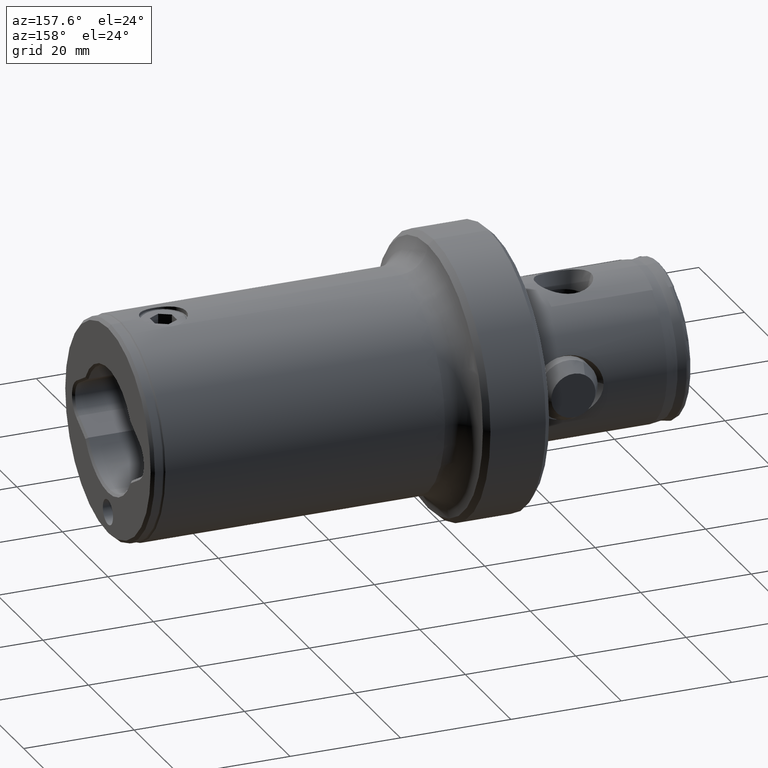
[diagram: clean part render]
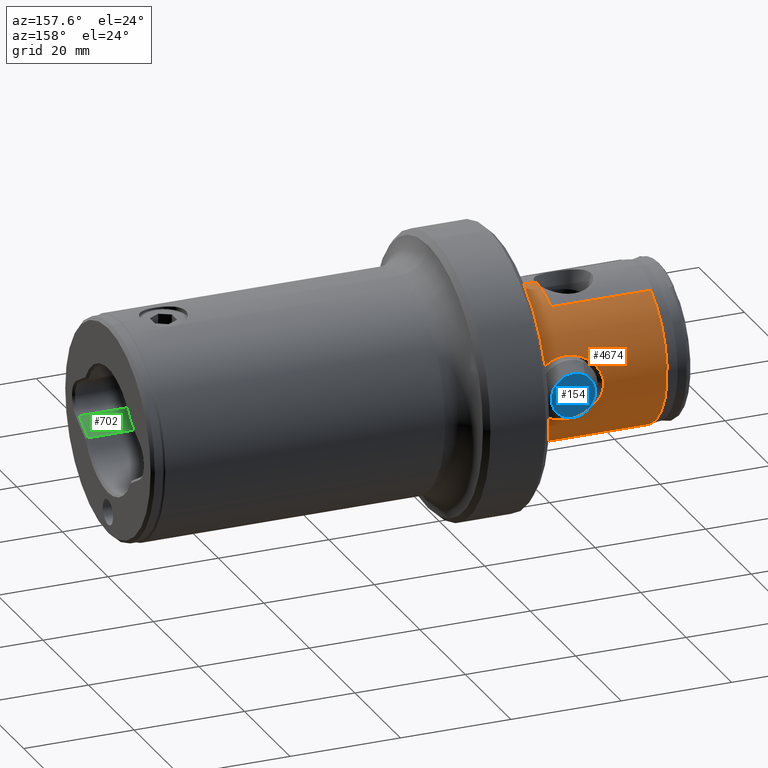
[diagram: same view with three faces highlighted in distinct colors, each labeled with its STEP entity id]
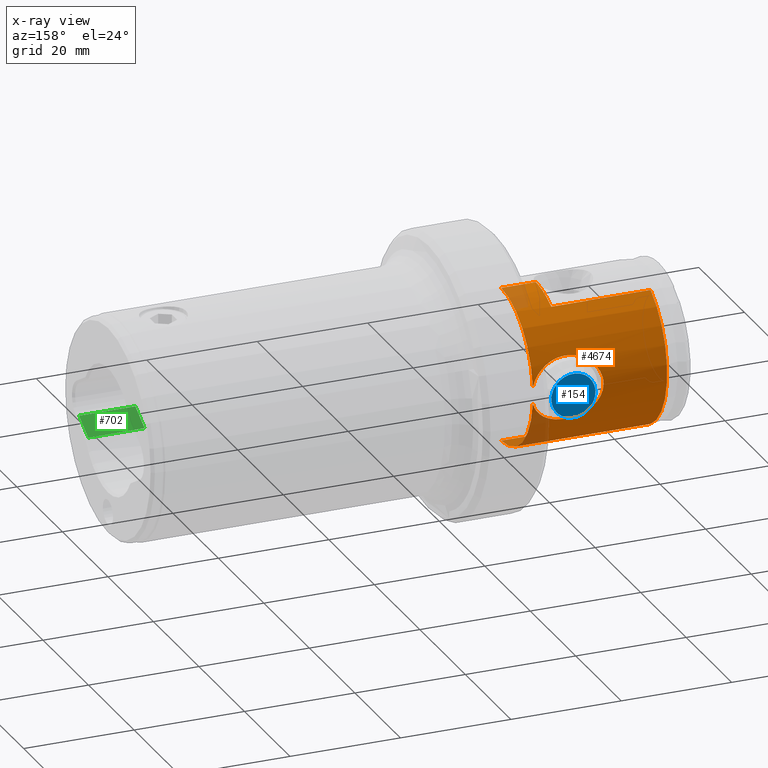
[diagram: x-ray of the same camera — body ghosted, the three highlighted faces saturated]
A machine part, auxiliary view with three faces highlighted in distinct colors.
The next image is the same camera in x-ray (body ghosted, the three faces saturated) — at least one of them is partly hidden behind the body in this view.
Their STEP definitions:

[orange] entity #4674 — the highlighted cylindrical surface (partial cylindrical patch) has radius 14 mm, axis along (-1, -0, -0).
#22 = CARTESIAN_POINT ( 'NONE',  ( 22.50000000000002100, 0.6195287105485863800, 13.98628557469087300 ) ) ;
#104 = B_SPLINE_CURVE_WITH_KNOTS ( 'NONE', 3,
 ( #3805, #3391, #2147, #5046, #2576, #127, #3003, #543, #3411, #949, #3821, #1348, #4231, #1749, #4639, #2168, #5069, #2597, #146, #3032, #566, #3429, #970, #3841, #1368, #4251, #1774, #4664, #2186, #5091, #2620, #167, #3050, #589, #3451, #986 ),
 .UNSPECIFIED., .F., .F.,
 ( 4, 2, 2, 2, 2, 2, 2, 2, 2, 2, 2, 2, 2, 2, 2, 2, 2, 4 ),
 ( 0.01617916280767380000, 0.01673943304204596500, 0.01729970327641813100, 0.01842024374516246200, 0.01954078421390679400, 0.02066132468265112500, 0.02178186515139545600, 0.02290240562013978700, 0.02402294608888411900, 0.02514348655762845000, 0.02626402702637278100, 0.02738456749511711300, 0.02850510796386144400, 0.02962564843260577200, 0.03074618890135010300, 0.03186672937009443800, 0.03298726983883876200, 0.03410781030758310000 ),
 .UNSPECIFIED. ) ;
#127 = CARTESIAN_POINT ( 'NONE',  ( 28.17722343992785700, 13.71020693130640900, 2.852895978286922800 ) ) ;
#146 = CARTESIAN_POINT ( 'NONE',  ( 22.10380463981419300, 12.74839810367421800, 5.786207584170949000 ) ) ;
#167 = CARTESIAN_POINT ( 'NONE',  ( 16.31341139357346700, 13.88318133678589700, 1.836763598897936500 ) ) ;
#196 = EDGE_CURVE ( 'NONE', #4934, #2727, #4138, .T. ) ;
#199 = VERTEX_POINT ( 'NONE', #568 ) ;
#240 = CARTESIAN_POINT ( 'NONE',  ( 16.62608626939409400, 13.77561300636506100, -2.520273029109398900 ) ) ;
#245 = VERTEX_POINT ( 'NONE', #4252 ) ;
#261 = CARTESIAN_POINT ( 'NONE',  ( 22.50347396202497300, 12.74348744818203000, -5.796893127253786000 ) ) ;
#275 = CARTESIAN_POINT ( 'NONE',  ( 28.17114847131676900, 13.70872448690615100, -2.845226302323693000 ) ) ;
#289 = EDGE_CURVE ( 'NONE', #372, #2625, #5304, .T. ) ;
#372 = VERTEX_POINT ( 'NONE', #4732 ) ;
#393 = EDGE_CURVE ( 'NONE', #245, #2727, #1432, .T. ) ;
#486 = ORIENTED_EDGE ( 'NONE', *, *, #196, .T. ) ;
#543 = CARTESIAN_POINT ( 'NONE',  ( 27.49264732477545800, 13.49760243534254100, 3.728319656754921100 ) ) ;
#549 = CARTESIAN_POINT ( 'NONE',  ( 22.50000000000002100, 6.750000000000006200, 12.26529657203607500 ) ) ;
#566 = CARTESIAN_POINT ( 'NONE',  ( 20.99596656029058700, 12.81393786885805900, 5.640383246267252700 ) ) ;
#568 = CARTESIAN_POINT ( 'NONE',  ( 28.78776358969248200, 13.91954716158114100, 1.498735072158645000 ) ) ;
#589 = CARTESIAN_POINT ( 'NONE',  ( 16.03012222491954800, 13.98504092691764300, 0.7453772973898797900 ) ) ;
#622 = ORIENTED_EDGE ( 'NONE', *, *, #2760, .F. ) ;
#658 = CARTESIAN_POINT ( 'NONE',  ( 17.24824415434904200, 13.57527407445546100, -3.435957168305956900 ) ) ;
#671 = CARTESIAN_POINT ( 'NONE',  ( 23.61695401852062300, 12.78237234179200500, -5.711212041004518600 ) ) ;
#677 = VECTOR ( 'NONE', #1724, 1000.000000000000000 ) ;
#687 = DIRECTION ( 'NONE',  ( -1.000000000000000000, -0.0000000000000000000, -0.0000000000000000000 ) ) ;
#688 = CARTESIAN_POINT ( 'NONE',  ( 28.44444748853305100, 13.79986139633488300, -2.364503812238540400 ) ) ;
#916 = AXIS2_PLACEMENT_3D ( 'NONE', #2152, #2986, #5051 ) ;
#949 = CARTESIAN_POINT ( 'NONE',  ( 26.66663210416451700, 13.27359372041587100, 4.457885804858521300 ) ) ;
#970 = CARTESIAN_POINT ( 'NONE',  ( 19.92007017289288500, 12.94956875717864400, 5.323048233088624000 ) ) ;
#986 = CARTESIAN_POINT ( 'NONE',  ( 15.98963702891818500, 13.99999999999999800, 4.857584573297528800E-022 ) ) ;
#1056 = CARTESIAN_POINT ( 'NONE',  ( 18.03494705810489400, 13.35028853930084700, -4.223742544200111300 ) ) ;
#1075 = CARTESIAN_POINT ( 'NONE',  ( 24.71056596563221300, 12.89516861314451300, -5.452955485573171200 ) ) ;
#1092 = CARTESIAN_POINT ( 'NONE',  ( 28.66933326572783600, 13.87756710464738500, -1.855558171264486600 ) ) ;
#1309 = CARTESIAN_POINT ( 'NONE',  ( 4.500000000000003600, 1.714505518806294200E-015, -13.99999999999999600 ) ) ;
#1312 = AXIS2_PLACEMENT_3D ( 'NONE', #1438, #4316, #1847 ) ;
#1348 = CARTESIAN_POINT ( 'NONE',  ( 25.72256660806686000, 13.06342288447790500, 5.038396326075075000 ) ) ;
#1368 = CARTESIAN_POINT ( 'NONE',  ( 18.92415714194833500, 13.13618127682975800, 4.846353247953244300 ) ) ;
#1407 = CARTESIAN_POINT ( 'NONE',  ( 22.54191015702186700, 0.1028715511443672600, 13.99999999999999600 ) ) ;
#1424 = EDGE_CURVE ( 'NONE', #4681, #2625, #5232, .T. ) ;
#1432 = CIRCLE ( 'NONE', #4645, 13.99999999999999600 ) ;
#1435 = EDGE_CURVE ( 'NONE', #2545, #3241, #3721, .T. ) ;
#1438 = CARTESIAN_POINT ( 'NONE',  ( 22.50000000000002100, 0.0000000000000000000, 0.0000000000000000000 ) ) ;
#1457 = CARTESIAN_POINT ( 'NONE',  ( 18.93973563474402900, 13.13284388272085600, -4.855309931349080600 ) ) ;
#1471 = CARTESIAN_POINT ( 'NONE',  ( 25.73306245226806200, 13.06545220893776900, -5.033197969460942100 ) ) ;
#1487 = CARTESIAN_POINT ( 'NONE',  ( 28.78776358969248200, 13.91954716158114100, -1.498735072158650300 ) ) ;
#1670 = EDGE_LOOP ( 'NONE', ( #3502, #486, #2666, #622, #3890, #1810, #2918, #1934, #4132, #2060 ) ) ;
#1722 = AXIS2_PLACEMENT_3D ( 'NONE', #3157, #687, #3555 ) ;
#1724 = DIRECTION ( 'NONE',  ( -1.000000000000000000, -0.0000000000000000000, -0.0000000000000000000 ) ) ;
#1734 = LINE ( 'NONE', #2975, #677 ) ;
#1749 = CARTESIAN_POINT ( 'NONE',  ( 24.69336452460555300, 12.89277859300576900, 5.458612865468873900 ) ) ;
#1752 = CARTESIAN_POINT ( 'NONE',  ( 0.0000000000000000000, 1.714505518806294400E-015, -13.99999999999999800 ) ) ;
#1774 = CARTESIAN_POINT ( 'NONE',  ( 18.01728063080291900, 13.35502813831743800, 4.208563855835136800 ) ) ;
#1807 = CARTESIAN_POINT ( 'NONE',  ( 22.52452809997116700, 0.4126754685317864900, 13.99429830404455000 ) ) ;
#1810 = ORIENTED_EDGE ( 'NONE', *, *, #289, .F. ) ;
#1832 = CARTESIAN_POINT ( 'NONE',  ( 28.78776358969248200, 0.0000000000000000000, 0.0000000000000000000 ) ) ;
#1847 = DIRECTION ( 'NONE',  ( 0.0000000000000000000, 0.0000000000000000000, -1.000000000000000000 ) ) ;
#1859 = CARTESIAN_POINT ( 'NONE',  ( 4.500000000000003600, 0.0000000000000000000, 0.0000000000000000000 ) ) ;
#1862 = CARTESIAN_POINT ( 'NONE',  ( 19.94334436828704000, 12.94584606145490100, -5.332103227996202400 ) ) ;
#1882 = CARTESIAN_POINT ( 'NONE',  ( 26.67690585033057000, 13.27618835809537300, -4.450061601866328200 ) ) ;
#1934 = ORIENTED_EDGE ( 'NONE', *, *, #3548, .T. ) ;
#1946 = CIRCLE ( 'NONE', #1722, 14.00000000000000000 ) ;
#2060 = ORIENTED_EDGE ( 'NONE', *, *, #1435, .T. ) ;
#2147 = CARTESIAN_POINT ( 'NONE',  ( 28.66938954433534900, 13.87758579120845700, 1.855481017835791000 ) ) ;
#2152 = CARTESIAN_POINT ( 'NONE',  ( 0.0000000000000000000, 0.0000000000000000000, 0.0000000000000000000 ) ) ;
#2168 = CARTESIAN_POINT ( 'NONE',  ( 23.60288020339752500, 12.78146201960355000, 5.713226223405788700 ) ) ;
#2186 = CARTESIAN_POINT ( 'NONE',  ( 17.24487378304166200, 13.57631193863255300, 3.431806266559936700 ) ) ;
#2217 = FACE_OUTER_BOUND ( 'NONE', #1670, .T. ) ;
#2233 = CARTESIAN_POINT ( 'NONE',  ( 22.50000000000002100, 0.6195287105485863800, 13.98628557469087300 ) ) ;
#2250 = DIRECTION ( 'NONE',  ( 0.0000000000000000000, 0.0000000000000000000, 1.000000000000000000 ) ) ;
#2262 = CARTESIAN_POINT ( 'NONE',  ( 16.03174733748676300, 13.98444998311187100, -0.7545028260767143700 ) ) ;
#2275 = DIRECTION ( 'NONE',  ( 0.0000000000000000000, 0.0000000000000000000, 1.000000000000000000 ) ) ;
#2281 = CARTESIAN_POINT ( 'NONE',  ( 21.01207283095606500, 12.81249466133767500, -5.643629143391041900 ) ) ;
#2299 = CARTESIAN_POINT ( 'NONE',  ( 27.49602212719179300, 13.49859519930823000, -3.724707007696863600 ) ) ;
#2419 = CARTESIAN_POINT ( 'NONE',  ( 28.78776358969248200, 13.91954716158114100, -1.498735072158650300 ) ) ;
#2545 = VERTEX_POINT ( 'NONE', #3764 ) ;
#2576 = CARTESIAN_POINT ( 'NONE',  ( 28.44356968773392300, 13.79956167482478700, 2.366282944461415300 ) ) ;
#2592 = LINE ( 'NONE', #2613, #4651 ) ;
#2597 = CARTESIAN_POINT ( 'NONE',  ( 22.48388380745340200, 12.74343060893639300, 5.797015248186820500 ) ) ;
#2599 = DIRECTION ( 'NONE',  ( -1.000000000000000000, -0.0000000000000000000, -0.0000000000000000000 ) ) ;
#2613 = CARTESIAN_POINT ( 'NONE',  ( 0.0000000000000000000, 0.0000000000000000000, 13.99999999999999800 ) ) ;
#2620 = CARTESIAN_POINT ( 'NONE',  ( 16.62136547431535000, 13.77721914258293100, 2.510907653730641200 ) ) ;
#2625 = VERTEX_POINT ( 'NONE', #22 ) ;
#2666 = ORIENTED_EDGE ( 'NONE', *, *, #393, .F. ) ;
#2675 = CARTESIAN_POINT ( 'NONE',  ( 15.98963702891819200, 14.00000000000000000, -0.3738999051761887100 ) ) ;
#2695 = CARTESIAN_POINT ( 'NONE',  ( 16.31350593464597800, 13.88313086942886800, -1.837924673293706200 ) ) ;
#2708 = CARTESIAN_POINT ( 'NONE',  ( 22.12641465850581200, 12.74778480129458700, -5.787553085286449000 ) ) ;
#2724 = CARTESIAN_POINT ( 'NONE',  ( 27.96277310924472600, 13.64177113662753300, -3.150638034622641900 ) ) ;
#2727 = VERTEX_POINT ( 'NONE', #1309 ) ;
#2760 = EDGE_CURVE ( 'NONE', #4681, #245, #1734, .T. ) ;
#2808 = AXIS2_PLACEMENT_3D ( 'NONE', #1832, #4719, #2250 ) ;
#2849 = EDGE_CURVE ( 'NONE', #5148, #372, #2592, .T. ) ;
#2918 = ORIENTED_EDGE ( 'NONE', *, *, #2849, .F. ) ;
#2975 = CARTESIAN_POINT ( 'NONE',  ( 0.0000000000000000000, 6.750000000000006200, 12.26529657203607500 ) ) ;
#2986 = DIRECTION ( 'NONE',  ( -1.000000000000000000, -0.0000000000000000000, -0.0000000000000000000 ) ) ;
#3003 = CARTESIAN_POINT ( 'NONE',  ( 27.96589843069674700, 13.64161019487802700, 3.161029936035107300 ) ) ;
#3032 = CARTESIAN_POINT ( 'NONE',  ( 21.36170099761923800, 12.78373347004779600, 5.707715040509778100 ) ) ;
#3050 = CARTESIAN_POINT ( 'NONE',  ( 16.19333999035252700, 13.92613098295558600, 1.483183363104587200 ) ) ;
#3076 = VECTOR ( 'NONE', #2599, 1000.000000000000000 ) ;
#3121 = CARTESIAN_POINT ( 'NONE',  ( 16.81425150724866700, 13.71259169351218800, -2.838784406402866400 ) ) ;
#3138 = CARTESIAN_POINT ( 'NONE',  ( 23.24750976685125500, 12.76084561571861400, -5.758581547791979300 ) ) ;
#3143 = CARTESIAN_POINT ( 'NONE',  ( 28.78776358969248200, 0.0000000000000000000, 14.00000000000000200 ) ) ;
#3157 = CARTESIAN_POINT ( 'NONE',  ( 28.78776358969248200, 0.0000000000000000000, 0.0000000000000000000 ) ) ;
#3159 = CARTESIAN_POINT ( 'NONE',  ( 28.26754132618175700, 13.74050191944416400, -2.688058748966573900 ) ) ;
#3241 = VERTEX_POINT ( 'NONE', #2419 ) ;
#3391 = CARTESIAN_POINT ( 'NONE',  ( 28.73364971644175700, 13.90027087078590800, 1.677764203997246900 ) ) ;
#3411 = CARTESIAN_POINT ( 'NONE',  ( 27.23229642198632700, 13.42261491086050500, 3.986783798824300000 ) ) ;
#3422 = CARTESIAN_POINT ( 'NONE',  ( 28.78776358969248200, 1.714505518806294800E-015, -14.00000000000000200 ) ) ;
#3429 = CARTESIAN_POINT ( 'NONE',  ( 20.27512604383535300, 12.89673290519941400, 5.448413277613359400 ) ) ;
#3451 = CARTESIAN_POINT ( 'NONE',  ( 15.98963702891818500, 14.00000000000000200, 0.3739419583356663500 ) ) ;
#3473 = CARTESIAN_POINT ( 'NONE',  ( 22.53846173367916400, 0.2059790903890634800, 13.99886633550141300 ) ) ;
#3502 = ORIENTED_EDGE ( 'NONE', *, *, #4781, .T. ) ;
#3526 = CARTESIAN_POINT ( 'NONE',  ( 17.49567390276181900, 13.50054708767017800, -3.715566376190026600 ) ) ;
#3545 = CARTESIAN_POINT ( 'NONE',  ( 24.35060378724785900, 12.84965087953021800, -5.558188368138720700 ) ) ;
#3548 = EDGE_CURVE ( 'NONE', #5148, #199, #4070, .T. ) ;
#3555 = DIRECTION ( 'NONE',  ( 0.0000000000000000000, 0.0000000000000000000, 1.000000000000000000 ) ) ;
#3556 = CARTESIAN_POINT ( 'NONE',  ( 28.52496326686997800, 13.82744523885322400, -2.198118067223119100 ) ) ;
#3721 = B_SPLINE_CURVE_WITH_KNOTS ( 'NONE', 3,
 ( #4739, #2675, #2262, #5156, #2695, #240, #3121, #658, #3526, #1056, #3938, #1457, #4334, #1862, #4760, #2281, #5173, #2708, #261, #3138, #671, #3545, #1075, #3952, #1471, #4359, #1882, #4772, #2299, #5194, #2724, #275, #3159, #688, #3556, #1092, #3971, #1487 ),
 .UNSPECIFIED., .F., .F.,
 ( 4, 2, 2, 2, 2, 2, 2, 2, 2, 2, 2, 2, 2, 2, 2, 2, 2, 2, 4 ),
 ( 0.03410781030758310000, 0.03522822476140456000, 0.03634863921522602000, 0.03746905366904747200, 0.03858946812286893200, 0.03970988257669039200, 0.04083029703051184500, 0.04195071148433330400, 0.04307112593815476400, 0.04419154039197621700, 0.04531195484579767000, 0.04643236929961912900, 0.04755278375344058900, 0.04867319820726204200, 0.04979361266108350100, 0.05035381988799422800, 0.05091402711490496100, 0.05147423434181568800, 0.05203444156872641400 ),
 .UNSPECIFIED. ) ;
#3764 = CARTESIAN_POINT ( 'NONE',  ( 15.98963702891818500, 13.99999999999999800, 4.857584573297528800E-022 ) ) ;
#3805 = CARTESIAN_POINT ( 'NONE',  ( 28.78776358969248200, 13.91954716158114100, 1.498735072158645000 ) ) ;
#3821 = CARTESIAN_POINT ( 'NONE',  ( 26.36006632196381400, 13.19941682637052000, 4.670529995732240800 ) ) ;
#3841 = CARTESIAN_POINT ( 'NONE',  ( 19.24633266374022300, 13.06911921005841900, 5.022379571673879700 ) ) ;
#3890 = ORIENTED_EDGE ( 'NONE', *, *, #1424, .T. ) ;
#3893 = EDGE_CURVE ( 'NONE', #199, #2545, #104, .T. ) ;
#3938 = CARTESIAN_POINT ( 'NONE',  ( 18.32654824824669900, 13.27485005146206700, -4.452412726665527600 ) ) ;
#3952 = CARTESIAN_POINT ( 'NONE',  ( 25.40044086225513100, 13.00294653176911000, -5.190710797282347900 ) ) ;
#3971 = CARTESIAN_POINT ( 'NONE',  ( 28.73351938081064500, 13.90022444299622400, -1.678195403493498500 ) ) ;
#4070 = CIRCLE ( 'NONE', #2808, 14.00000000000000000 ) ;
#4132 = ORIENTED_EDGE ( 'NONE', *, *, #3893, .T. ) ;
#4138 = LINE ( 'NONE', #1752, #3076 ) ;
#4231 = CARTESIAN_POINT ( 'NONE',  ( 25.38933266627962800, 13.00092564032651100, 5.195779706457033200 ) ) ;
#4251 = CARTESIAN_POINT ( 'NONE',  ( 18.30960395672395400, 13.27905920831410700, 4.439930729613680100 ) ) ;
#4252 = CARTESIAN_POINT ( 'NONE',  ( 4.500000000000003600, 6.750000000000006200, 12.26529657203607300 ) ) ;
#4285 = CYLINDRICAL_SURFACE ( 'NONE', #916, 13.99999999999999800 ) ;
#4289 = CARTESIAN_POINT ( 'NONE',  ( 22.54191015702186400, -7.143293268957306100E-023, 13.99999999999999800 ) ) ;
#4316 = DIRECTION ( 'NONE',  ( 1.000000000000000000, 0.0000000000000000000, 0.0000000000000000000 ) ) ;
#4334 = CARTESIAN_POINT ( 'NONE',  ( 19.26294297123714100, 13.06578783807147700, -5.031047927758028700 ) ) ;
#4359 = CARTESIAN_POINT ( 'NONE',  ( 26.37317026708382900, 13.20242977858412700, -4.662077987912421200 ) ) ;
#4632 = DIRECTION ( 'NONE',  ( -1.000000000000000000, -0.0000000000000000000, -0.0000000000000000000 ) ) ;
#4639 = CARTESIAN_POINT ( 'NONE',  ( 24.33127558045860200, 12.84751515390803100, 5.563099820107784600 ) ) ;
#4645 = AXIS2_PLACEMENT_3D ( 'NONE', #1859, #4756, #2275 ) ;
#4651 = VECTOR ( 'NONE', #4632, 1000.000000000000000 ) ;
#4664 = CARTESIAN_POINT ( 'NONE',  ( 17.48653447126947200, 13.50328592275027800, 3.705408964250353200 ) ) ;
#4674 = ADVANCED_FACE ( 'NONE', ( #2217 ), #4285, .T. ) ;
#4681 = VERTEX_POINT ( 'NONE', #549 ) ;
#4700 = CARTESIAN_POINT ( 'NONE',  ( 22.51397347290129900, 0.5166808219592611300, 13.99084126744148000 ) ) ;
#4719 = DIRECTION ( 'NONE',  ( -1.000000000000000000, -0.0000000000000000000, -0.0000000000000000000 ) ) ;
#4732 = CARTESIAN_POINT ( 'NONE',  ( 22.54191015702186400, -7.143293268957306100E-023, 13.99999999999999800 ) ) ;
#4739 = CARTESIAN_POINT ( 'NONE',  ( 15.98963702891818500, 13.99999999999999800, 4.857584573297528800E-022 ) ) ;
#4756 = DIRECTION ( 'NONE',  ( -1.000000000000000000, -0.0000000000000000000, -0.0000000000000000000 ) ) ;
#4760 = CARTESIAN_POINT ( 'NONE',  ( 20.29559732676402500, 12.89399509722329800, -5.454856532276592100 ) ) ;
#4772 = CARTESIAN_POINT ( 'NONE',  ( 27.23710343944244600, 13.42399627282170700, -3.982028333312214000 ) ) ;
#4781 = EDGE_CURVE ( 'NONE', #3241, #4934, #1946, .T. ) ;
#4934 = VERTEX_POINT ( 'NONE', #3422 ) ;
#5046 = CARTESIAN_POINT ( 'NONE',  ( 28.52441423711032100, 13.82725548359014000, 2.199364224367139200 ) ) ;
#5051 = DIRECTION ( 'NONE',  ( 0.0000000000000000000, 0.0000000000000000000, 1.000000000000000000 ) ) ;
#5069 = CARTESIAN_POINT ( 'NONE',  ( 23.23345940870850900, 12.76013519631466400, 5.760152710150942200 ) ) ;
#5091 = CARTESIAN_POINT ( 'NONE',  ( 16.81232465575290300, 13.71323025093349700, 2.835640349398915300 ) ) ;
#5148 = VERTEX_POINT ( 'NONE', #3143 ) ;
#5156 = CARTESIAN_POINT ( 'NONE',  ( 16.19405136257949000, 13.92587868651674100, -1.484593767040005100 ) ) ;
#5173 = CARTESIAN_POINT ( 'NONE',  ( 21.37809376841595100, 12.78251318130474300, -5.710441736406785700 ) ) ;
#5194 = CARTESIAN_POINT ( 'NONE',  ( 27.85018063693575700, 13.60641529112560900, -3.299521417935706400 ) ) ;
#5232 = CIRCLE ( 'NONE', #1312, 13.99999999999999800 ) ;
#5304 = B_SPLINE_CURVE_WITH_KNOTS ( 'NONE', 3,
 ( #4289, #1407, #3473, #1807, #4700, #2233 ),
 .UNSPECIFIED., .F., .F.,
 ( 4, 2, 4 ),
 ( 0.01151752945527036200, 0.01182405277907042600, 0.01213057610287049000 ),
 .UNSPECIFIED. ) ;

[blue] entity #154 — the highlighted planar face has unit normal (0, 1, 0).
#154 = ADVANCED_FACE ( 'NONE', ( #4662 ), #3217, .T. ) ;
#169 = AXIS2_PLACEMENT_3D ( 'NONE', #336, #3213, #746 ) ;
#336 = CARTESIAN_POINT ( 'NONE',  ( 33.00000000000000000, 0.0000000000000000000, 0.0000000000000000000 ) ) ;
#420 = VERTEX_POINT ( 'NONE', #1500 ) ;
#491 = CARTESIAN_POINT ( 'NONE',  ( 33.00000000000000000, 0.0000000000000000000, 0.0000000000000000000 ) ) ;
#597 = VERTEX_POINT ( 'NONE', #3359 ) ;
#746 = DIRECTION ( 'NONE',  ( 0.0000000000000000000, 0.0000000000000000000, -1.000000000000000000 ) ) ;
#893 = DIRECTION ( 'NONE',  ( 0.0000000000000000000, 0.0000000000000000000, -1.000000000000000000 ) ) ;
#920 = EDGE_LOOP ( 'NONE', ( #2757, #2235 ) ) ;
#1500 = CARTESIAN_POINT ( 'NONE',  ( 33.00000000000000000, 5.790512356415651800E-016, -4.006624327025934700 ) ) ;
#1553 = CARTESIAN_POINT ( 'NONE',  ( 33.00000000000000000, 0.0000000000000000000, 0.0000000000000000000 ) ) ;
#2153 = AXIS2_PLACEMENT_3D ( 'NONE', #1553, #2377, #5279 ) ;
#2235 = ORIENTED_EDGE ( 'NONE', *, *, #3815, .T. ) ;
#2377 = DIRECTION ( 'NONE',  ( 1.000000000000000000, 0.0000000000000000000, 0.0000000000000000000 ) ) ;
#2460 = CIRCLE ( 'NONE', #169, 4.006624327025934700 ) ;
#2757 = ORIENTED_EDGE ( 'NONE', *, *, #3158, .T. ) ;
#3158 = EDGE_CURVE ( 'NONE', #597, #420, #2460, .T. ) ;
#3213 = DIRECTION ( 'NONE',  ( 1.000000000000000000, 0.0000000000000000000, 0.0000000000000000000 ) ) ;
#3217 = PLANE ( 'NONE',  #2153 ) ;
#3358 = DIRECTION ( 'NONE',  ( 1.000000000000000000, 0.0000000000000000000, 0.0000000000000000000 ) ) ;
#3359 = CARTESIAN_POINT ( 'NONE',  ( 33.00000000000000000, 0.0000000000000000000, 4.006624327025934700 ) ) ;
#3815 = EDGE_CURVE ( 'NONE', #420, #597, #3887, .T. ) ;
#3887 = CIRCLE ( 'NONE', #4626, 4.006624327025934700 ) ;
#4626 = AXIS2_PLACEMENT_3D ( 'NONE', #491, #3358, #893 ) ;
#4662 = FACE_OUTER_BOUND ( 'NONE', #920, .T. ) ;
#5279 = DIRECTION ( 'NONE',  ( 0.0000000000000000000, 0.0000000000000000000, -1.000000000000000000 ) ) ;

[green] entity #702 — the highlighted planar face has unit normal (0, -0.5, -0.866).
#74 = EDGE_CURVE ( 'NONE', #2286, #1029, #1377, .T. ) ;
#109 = CARTESIAN_POINT ( 'NONE',  ( 99.60000000000002300, -9.595993735232678300, -5.377444024197269600 ) ) ;
#147 = DIRECTION ( 'NONE',  ( 0.0000000000000000000, 0.8660254037844400400, -0.4999999999999974500 ) ) ;
#702 = ADVANCED_FACE ( 'NONE', ( #4655 ), #2559, .F. ) ;
#834 = CARTESIAN_POINT ( 'NONE',  ( 89.39999999987952600, -13.66000000000002000, -3.031088913245536100 ) ) ;
#863 = AXIS2_PLACEMENT_3D ( 'NONE', #2169, #2598, #147 ) ;
#913 = CARTESIAN_POINT ( 'NONE',  ( 89.39999999987952600, -9.595993735232678300, -5.377444024197269600 ) ) ;
#1029 = VERTEX_POINT ( 'NONE', #913 ) ;
#1377 = LINE ( 'NONE', #2329, #3572 ) ;
#1534 = EDGE_CURVE ( 'NONE', #1712, #2082, #4708, .T. ) ;
#1712 = VERTEX_POINT ( 'NONE', #3323 ) ;
#1888 = EDGE_CURVE ( 'NONE', #1029, #2082, #3430, .T. ) ;
#2082 = VERTEX_POINT ( 'NONE', #109 ) ;
#2169 = CARTESIAN_POINT ( 'NONE',  ( 89.39999999987952600, -13.66000000000002000, -3.031088913245536100 ) ) ;
#2231 = DIRECTION ( 'NONE',  ( 1.000000000000000000, -0.0000000000000000000, -0.0000000000000000000 ) ) ;
#2286 = VERTEX_POINT ( 'NONE', #3108 ) ;
#2313 = VECTOR ( 'NONE', #2231, 1000.000000000000000 ) ;
#2329 = CARTESIAN_POINT ( 'NONE',  ( 89.39999999987952600, -13.66000000000002000, -3.031088913245536100 ) ) ;
#2465 = EDGE_CURVE ( 'NONE', #2286, #1712, #3192, .T. ) ;
#2559 = PLANE ( 'NONE',  #863 ) ;
#2598 = DIRECTION ( 'NONE',  ( 0.0000000000000000000, -0.4999999999999975000, -0.8660254037844401500 ) ) ;
#2805 = ORIENTED_EDGE ( 'NONE', *, *, #74, .F. ) ;
#3108 = CARTESIAN_POINT ( 'NONE',  ( 89.39999999987952600, -13.66000000000002000, -3.031088913245536100 ) ) ;
#3192 = LINE ( 'NONE', #834, #4010 ) ;
#3246 = ORIENTED_EDGE ( 'NONE', *, *, #1534, .T. ) ;
#3299 = DIRECTION ( 'NONE',  ( 1.000000000000000000, -0.0000000000000000000, -0.0000000000000000000 ) ) ;
#3323 = CARTESIAN_POINT ( 'NONE',  ( 99.60000000000002300, -13.66000000000002000, -3.031088913245536100 ) ) ;
#3430 = LINE ( 'NONE', #4697, #2313 ) ;
#3572 = VECTOR ( 'NONE', #5223, 1000.000000000000100 ) ;
#3618 = VECTOR ( 'NONE', #3621, 1000.000000000000100 ) ;
#3621 = DIRECTION ( 'NONE',  ( 0.0000000000000000000, 0.8660254037844400400, -0.4999999999999974500 ) ) ;
#3902 = ORIENTED_EDGE ( 'NONE', *, *, #2465, .T. ) ;
#4010 = VECTOR ( 'NONE', #3299, 1000.000000000000000 ) ;
#4655 = FACE_OUTER_BOUND ( 'NONE', #4996, .T. ) ;
#4680 = ORIENTED_EDGE ( 'NONE', *, *, #1888, .F. ) ;
#4697 = CARTESIAN_POINT ( 'NONE',  ( 99.99999999999997200, -9.595993735232678300, -5.377444024197269600 ) ) ;
#4708 = LINE ( 'NONE', #5265, #3618 ) ;
#4996 = EDGE_LOOP ( 'NONE', ( #3902, #3246, #4680, #2805 ) ) ;
#5223 = DIRECTION ( 'NONE',  ( 0.0000000000000000000, 0.8660254037844400400, -0.4999999999999974500 ) ) ;
#5265 = CARTESIAN_POINT ( 'NONE',  ( 99.60000000000002300, -9.595993735232678300, -5.377444024197268700 ) ) ;